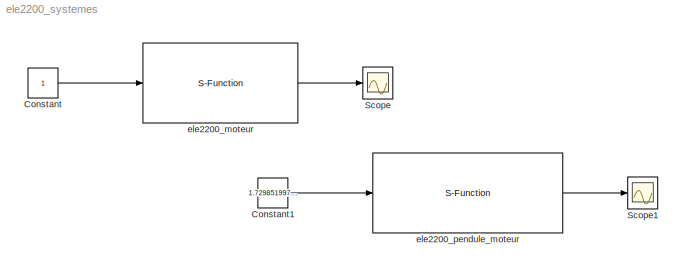
MODEL ele2200_systemes
KIND model
BLOCK [Constant] Constant
  SID = 1
BLOCK [Constant] Constant1
  SID = 2
  Value = 1.7298519974968 + 0.17298519974968
BLOCK [Scope] Scope
  Floating = off
  NumInputPorts = 1
  Ports = [1]
  SID = 3
  SampleTime = 0
  SaveToWorkspace = on
  ShowLegends = off
  ZoomMode = xonly
BLOCK [Scope] Scope1
  Floating = off
  LimitDataPoints = off
  NumInputPorts = 1
  Ports = [1]
  SID = 4
  SampleTime = 0
  SaveName = theta
  SaveToWorkspace = on
  ShowLegends = off
BLOCK [S-Function] ele2200_moteur
  EnableBusSupport = off
  FunctionName = ele2200_moteur
  Ports = [1, 1]
  SID = 5
BLOCK [S-Function] ele2200_pendule_moteur
  EnableBusSupport = off
  FunctionName = ele2200_moteur_pendule
  Parameters = unit1,unit2
  Ports = [1, 1]
  SID = 6
LINE Constant1:1 -> ele2200_pendule_moteur:1
LINE Constant:1 -> ele2200_moteur:1
LINE ele2200_moteur:1 -> Scope:1
LINE ele2200_pendule_moteur:1 -> Scope1:1
